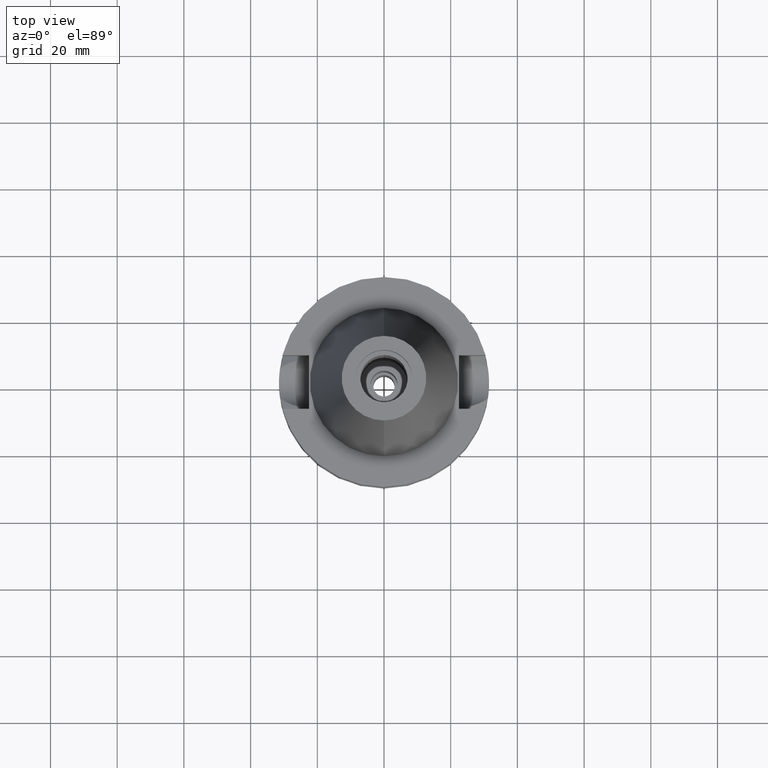
[diagram: clean part render]
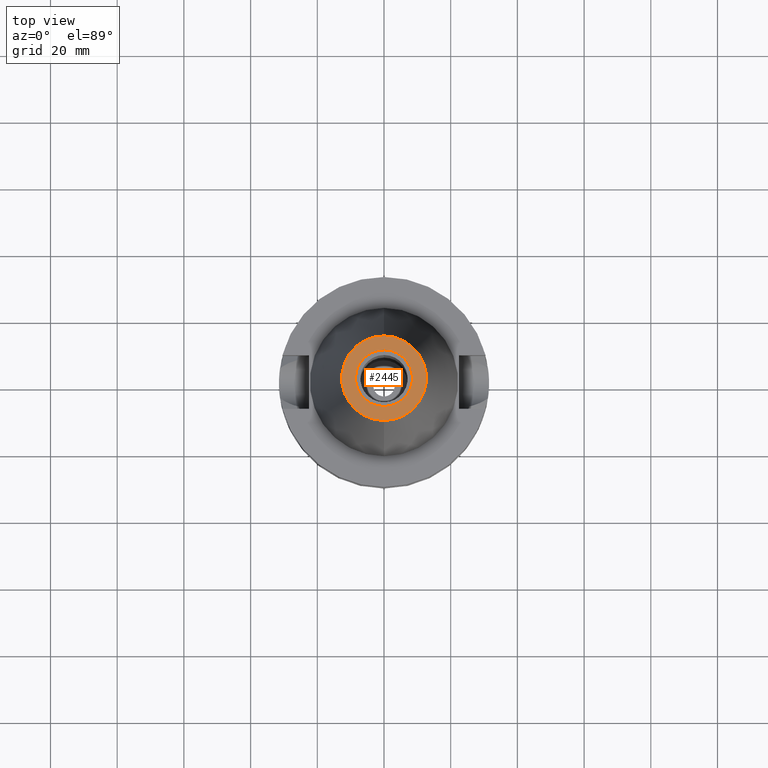
[diagram: same view with one face highlighted and labeled with its STEP entity id]
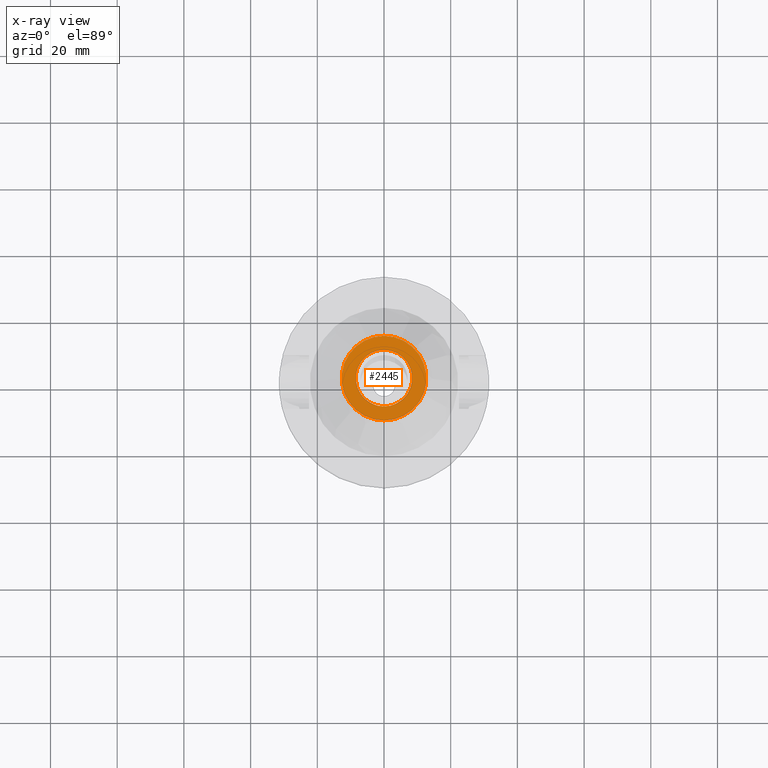
[diagram: x-ray of the same camera — body ghosted, the highlighted face saturated]
A machine part, top view. The second image highlights one B-rep face of the part: STEP entity #2445.
The next image is the same camera in x-ray: the body ghosted, the highlighted face saturated — about 0% of this face is hidden behind the body in this view.
In plain terms, the highlighted planar face has unit normal (0, 0, -1).
Its self-contained STEP definition (entity closure, byte-faithful):
#13 = AXIS2_PLACEMENT_3D ( 'NONE', #181, #609, #2079 ) ;
#181 = CARTESIAN_POINT ( 'NONE',  ( 0.0000000000000000000, 2.025565805790000122E-14, 65.40000000000000568 ) ) ;
#307 = AXIS2_PLACEMENT_3D ( 'NONE', #812, #1291, #1072 ) ;
#344 = DIRECTION ( 'NONE',  ( 0.0000000000000000000, 0.0000000000000000000, 1.000000000000000000 ) ) ;
#404 = DIRECTION ( 'NONE',  ( 0.0000000000000000000, 1.000000000000000000, 0.0000000000000000000 ) ) ;
#423 = DIRECTION ( 'NONE',  ( 0.0000000000000000000, 0.0000000000000000000, -1.000000000000000000 ) ) ;
#438 = EDGE_CURVE ( 'NONE', #2077, #3098, #1737, .T. ) ;
#609 = DIRECTION ( 'NONE',  ( 0.0000000000000000000, 0.0000000000000000000, -1.000000000000000000 ) ) ;
#658 = EDGE_CURVE ( 'NONE', #880, #2376, #2750, .T. ) ;
#663 = FACE_OUTER_BOUND ( 'NONE', #1433, .T. ) ;
#783 = EDGE_CURVE ( 'NONE', #3098, #2077, #1082, .T. ) ;
#812 = CARTESIAN_POINT ( 'NONE',  ( 0.0000000000000000000, 1.625106302469000024E-14, 65.40000000000000568 ) ) ;
#880 = VERTEX_POINT ( 'NONE', #2547 ) ;
#916 = FACE_BOUND ( 'NONE', #2869, .T. ) ;
#1063 = CARTESIAN_POINT ( 'NONE',  ( 0.0000000000000000000, 12.68766899429999917, 65.40000000000000568 ) ) ;
#1072 = DIRECTION ( 'NONE',  ( 0.0000000000000000000, -1.000000000000000000, 0.0000000000000000000 ) ) ;
#1082 = CIRCLE ( 'NONE', #2853, 8.500000000000000000 ) ;
#1103 = CARTESIAN_POINT ( 'NONE',  ( 0.0000000000000000000, 2.144479009986999603E-14, 65.40000000000000568 ) ) ;
#1182 = AXIS2_PLACEMENT_3D ( 'NONE', #1103, #1857, #1826 ) ;
#1206 = EDGE_CURVE ( 'NONE', #2376, #880, #3012, .T. ) ;
#1291 = DIRECTION ( 'NONE',  ( 0.0000000000000000000, 0.0000000000000000000, -1.000000000000000000 ) ) ;
#1402 = CARTESIAN_POINT ( 'NONE',  ( 0.0000000000000000000, 1.625106302469000024E-14, 65.40000000000000568 ) ) ;
#1433 = EDGE_LOOP ( 'NONE', ( #2448, #1769 ) ) ;
#1567 = DIRECTION ( 'NONE',  ( 0.0000000000000000000, -1.000000000000000000, 0.0000000000000000000 ) ) ;
#1737 = CIRCLE ( 'NONE', #1182, 8.500000000000000000 ) ;
#1769 = ORIENTED_EDGE ( 'NONE', *, *, #658, .F. ) ;
#1826 = DIRECTION ( 'NONE',  ( 0.0000000000000000000, 1.000000000000000000, 0.0000000000000000000 ) ) ;
#1857 = DIRECTION ( 'NONE',  ( 0.0000000000000000000, 0.0000000000000000000, 1.000000000000000000 ) ) ;
#2077 = VERTEX_POINT ( 'NONE', #2744 ) ;
#2079 = DIRECTION ( 'NONE',  ( 0.0000000000000000000, -1.000000000000000000, 0.0000000000000000000 ) ) ;
#2376 = VERTEX_POINT ( 'NONE', #1063 ) ;
#2445 = ADVANCED_FACE ( 'NONE', ( #663, #916 ), #2618, .F. ) ;
#2448 = ORIENTED_EDGE ( 'NONE', *, *, #1206, .F. ) ;
#2525 = CARTESIAN_POINT ( 'NONE',  ( 0.0000000000000000000, 2.144479009986999603E-14, 65.40000000000000568 ) ) ;
#2547 = CARTESIAN_POINT ( 'NONE',  ( 0.0000000000000000000, -12.68766899429999917, 65.40000000000000568 ) ) ;
#2598 = ORIENTED_EDGE ( 'NONE', *, *, #438, .F. ) ;
#2618 = PLANE ( 'NONE',  #13 ) ;
#2641 = ORIENTED_EDGE ( 'NONE', *, *, #783, .F. ) ;
#2744 = CARTESIAN_POINT ( 'NONE',  ( 0.0000000000000000000, 8.500000000000000000, 65.40000000000000568 ) ) ;
#2750 = CIRCLE ( 'NONE', #307, 12.68766899429999917 ) ;
#2853 = AXIS2_PLACEMENT_3D ( 'NONE', #2525, #344, #1567 ) ;
#2869 = EDGE_LOOP ( 'NONE', ( #2598, #2641 ) ) ;
#3012 = CIRCLE ( 'NONE', #3113, 12.68766899429999917 ) ;
#3034 = CARTESIAN_POINT ( 'NONE',  ( 0.0000000000000000000, -8.500000000000000000, 65.40000000000000568 ) ) ;
#3098 = VERTEX_POINT ( 'NONE', #3034 ) ;
#3113 = AXIS2_PLACEMENT_3D ( 'NONE', #1402, #423, #404 ) ;